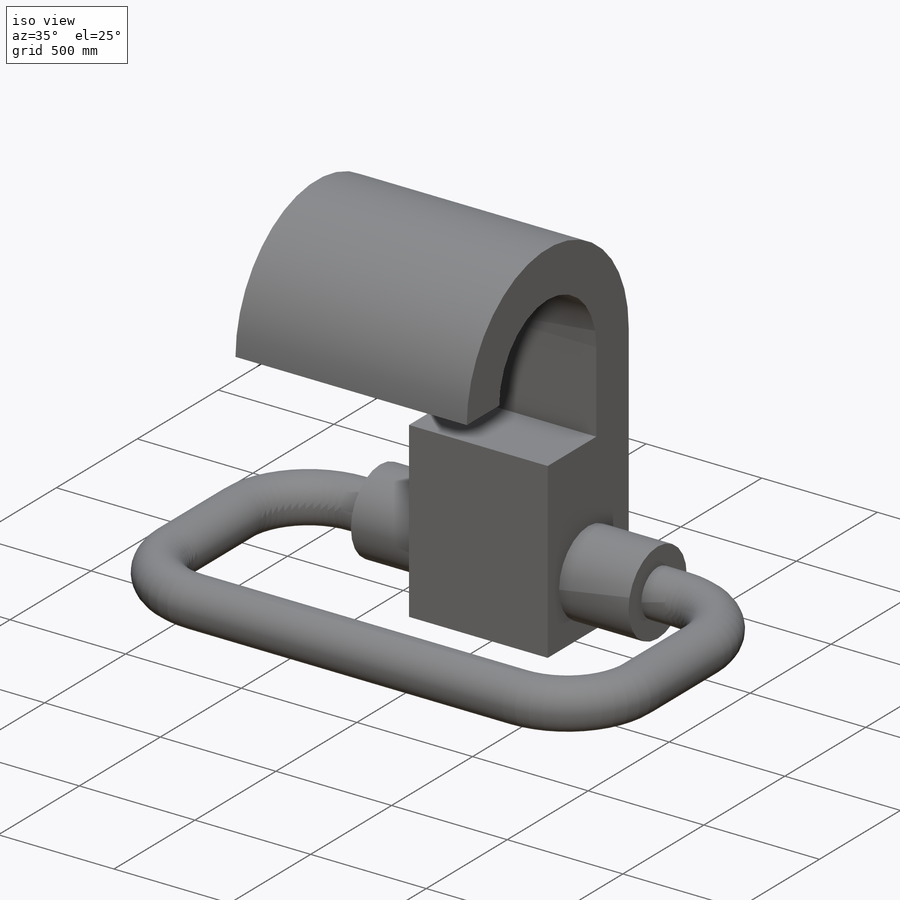
[diagram: iso view]
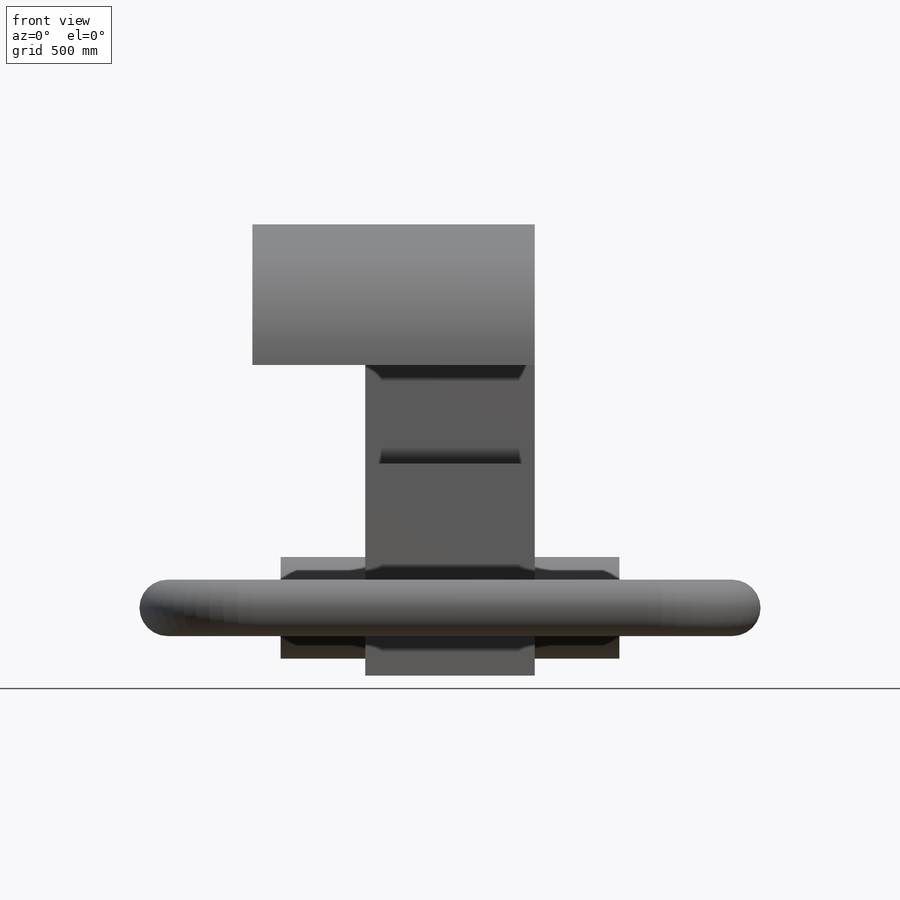
[diagram: front view]
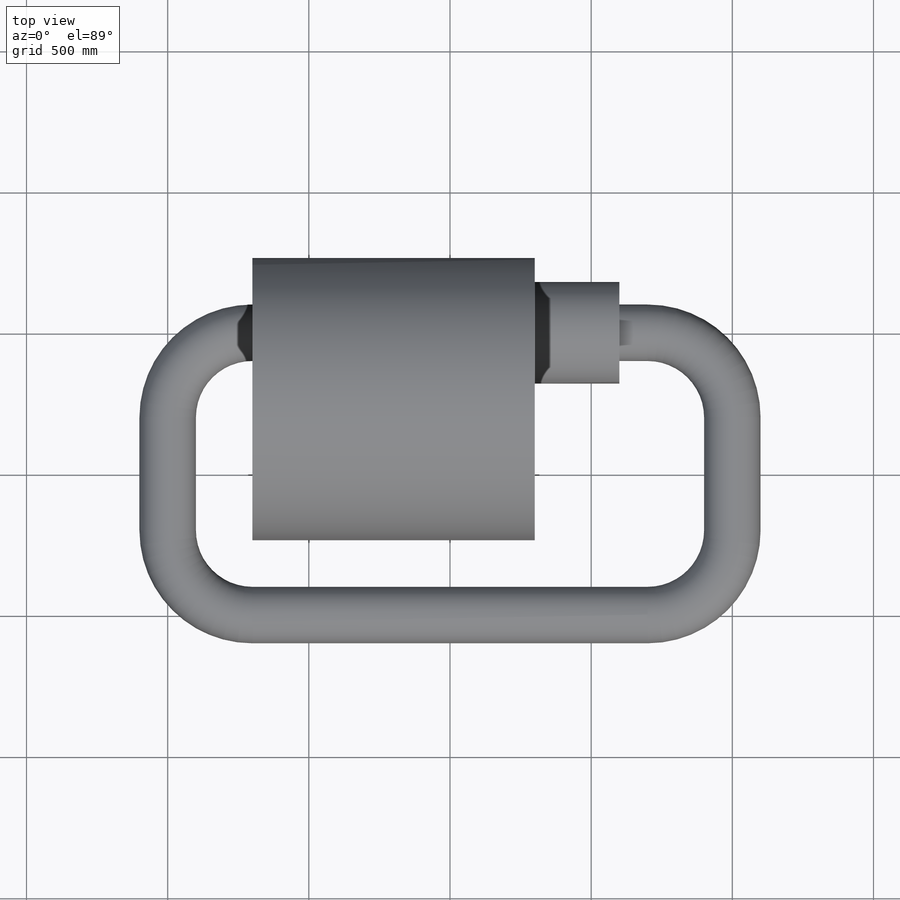
[diagram: top view]
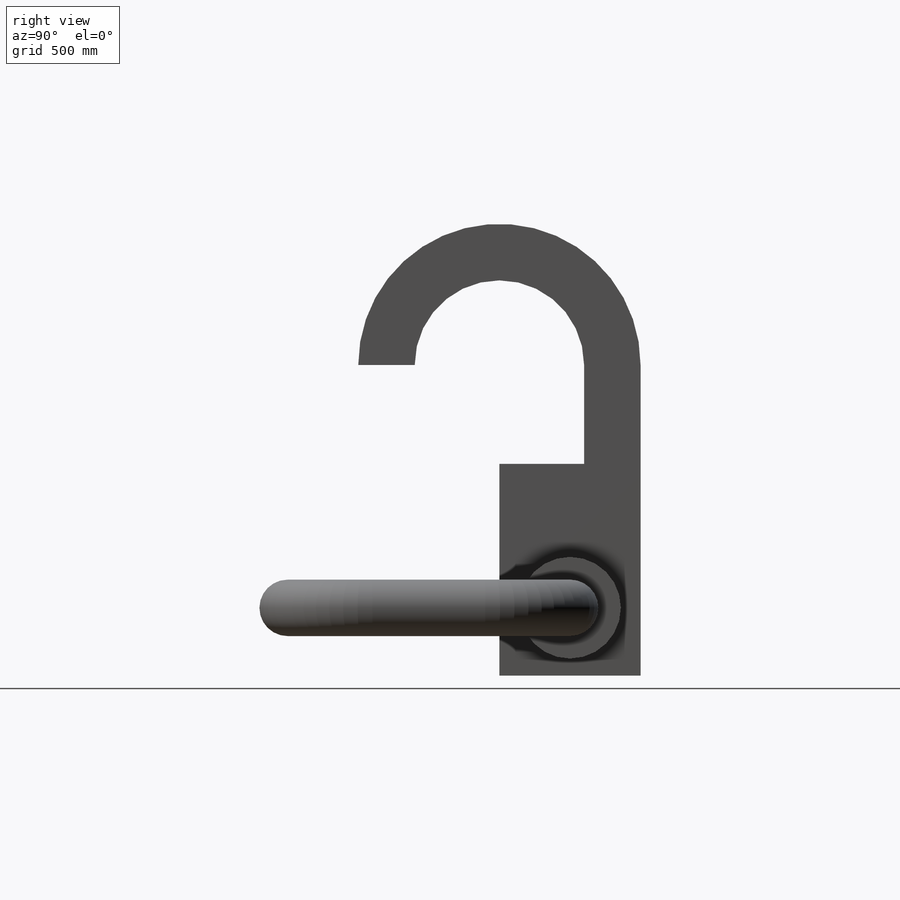
[diagram: right view]
SOLIDWORKS PART (.sldprt)
format: sldprt  version: not decoded by parser v0  size: 390,144 bytes
history: native  units: mm
features: sketch x20, extrude x10, mirror x8, plane x4, sweep x2, material x1 (+9 scaffold rows collapsed)
feature tree (54):
  scaffold x9  (default folders/planes/origin — collapsed)
  material  "Material <não especificado>"
  plane  "Plano frontal"
  plane  "Plano superior"
  plane  "Plano direito"
  sketch  "Esboço1"  dims[c1.D4=360.0mm c1.D5=200.0mm c1.D1=1000.0mm c2.D1=90.0deg c3.D1=750.0mm c3.D2=500.0mm c3.D3=240.0mm c3.D4=250.0mm c3.D6=200.0mm c3.D7=350.0mm]
  extrude  "Ressalto-extrusão2"  Depth=700mm
  extrude  "Ressalto-extrusão6"  [1 undecoded]
  sketch  "Esboço1<9>"  dims[D1=600.0mm]
  extrude  "Ressalto-extrusão7"  [1 undecoded]
  sketch  "Esboço1<10>"  dims[D1=300.0mm]
  sketch  "Esboço3"  dims[D1=200.0mm]
  extrude  "Ressalto-extrusão8"  Depth=350mm
  sketch  "Esboço5"  dims[D1=300.0mm]
  sketch  "Esboço6"  dims[D1=300.0mm]
  extrude  "Ressalto-extrusão9"  Depth=300mm
  sketch  "3DSketch1"  dims[D1=240.0mm]
  sketch  "Esboço7"
  sketch  "Esboço8"  dims[D1=300.0mm]
  sketch  "Esboço9"
  sweep  "Varredura1"
  sketch  "Esboço10"
  extrude  "Ressalto-extrusão10"  Depth=400mm
  sketch  "Esboço13"
  sketch  "Esboço14"  dims[D1=300.0mm]
  sketch  "Esboço15"
  sweep  "Varredura2"
  sketch  "Esboço17"
  sketch  "Esboço19"
  extrude  "Ressalto-extrusão11"  Depth=700mm
  mirror  "Espelhar1"
  mirror  "Espelhar2"
  mirror  "Espelhar3"
  mirror  "Espelhar4"
  mirror  "Espelhar5"
  mirror  "Espelhar6"
  mirror  "Espelhar7"
  mirror  "Espelhar8"
  plane  "Plano1"
  sketch  "Esboço21"
  extrude  "Ressalto-extrusão12"  Depth=300mm
  sketch  "Esboço22"
  extrude  "Ressalto-extrusão13"  Depth=300mm
  sketch  "Esboço26"
  extrude  "Ressalto-extrusão14"  Depth=400mm
  sketch  "Esboço30"  dims[c1.D1=~555.80995mm c1.D2=48.0deg c2.D1=~32.696603deg c3.D1=4.0]
decode coverage: 18 of 40 modeling features carry decoded parameters
note: ~ marks probable driven/reference dimensions
note: 2 parameter values undecoded
note: suppression state not decoded; provenance and decode notes live in map.json
